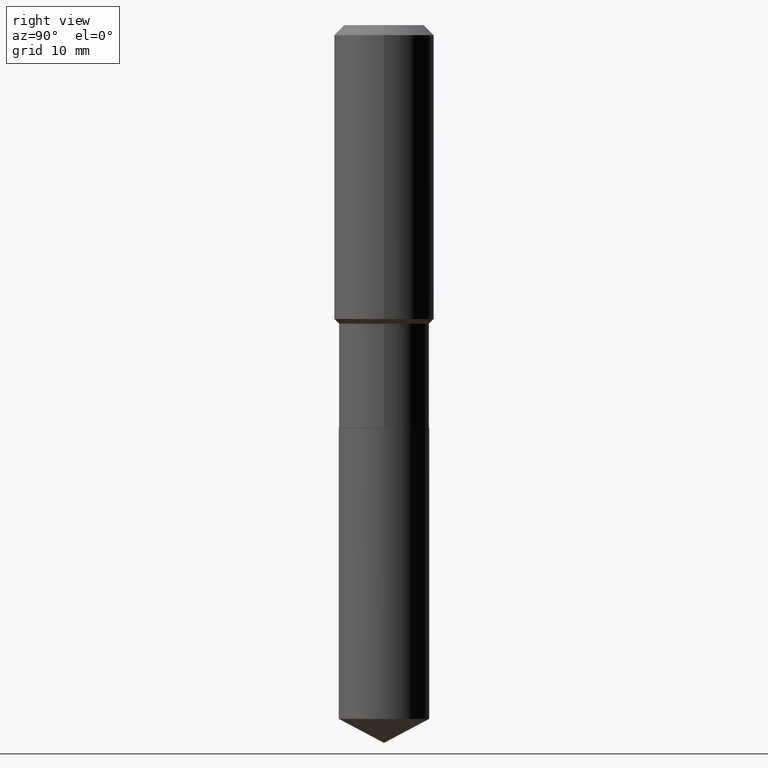
[diagram: clean part render]
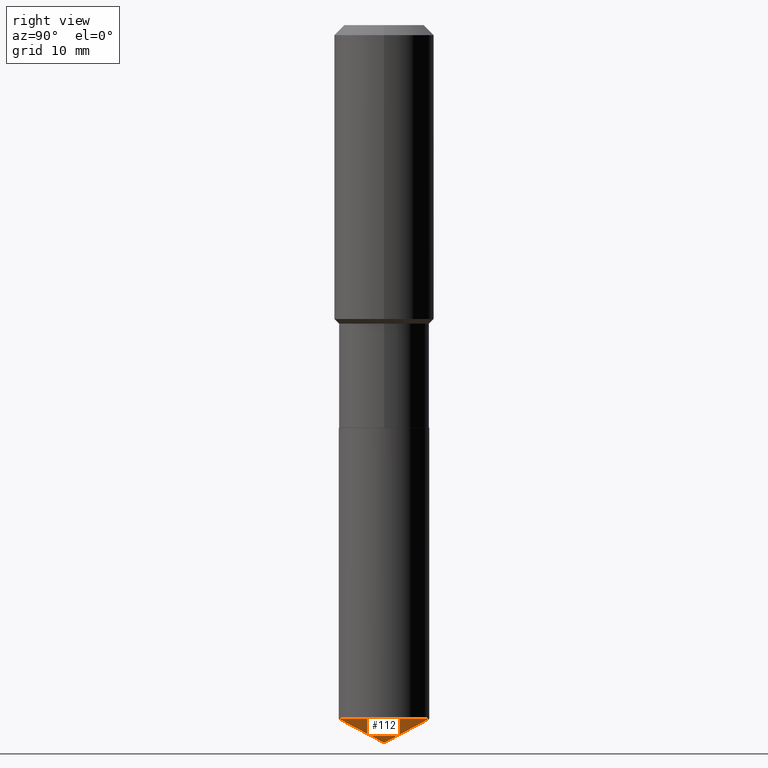
[diagram: same view with one face highlighted and labeled with its STEP entity id]
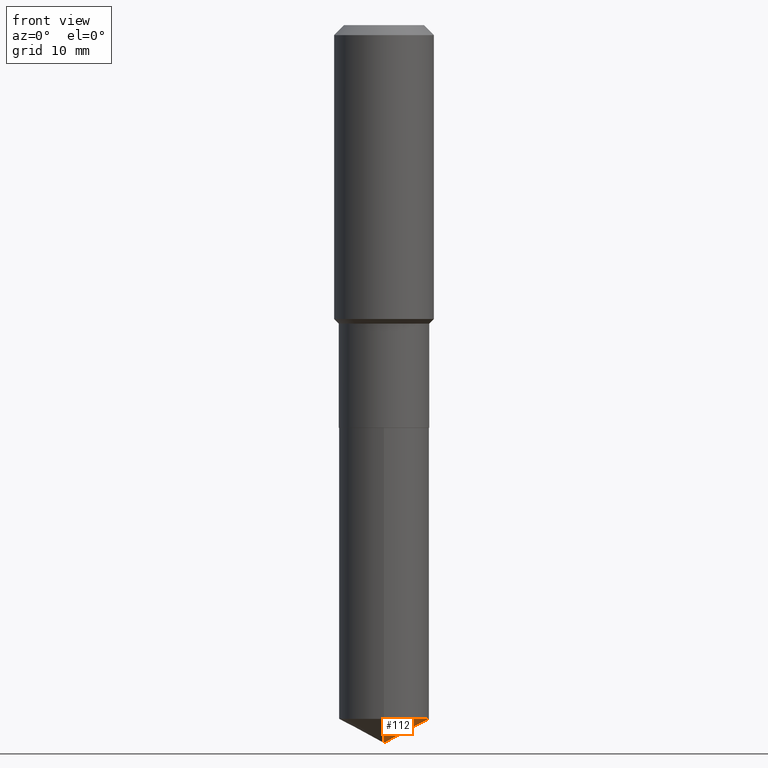
[diagram: same view with one face highlighted and labeled with its STEP entity id]
A machine part, right view. The second image highlights one B-rep face of the part: STEP entity #112.
A second angle (front view) of the same face is appended — the face is thin or edge-on in the first view.
In plain terms, the highlighted conical surface has half-angle 62 deg.
Its self-contained STEP definition (entity closure, byte-faithful):
#24 = ORIENTED_EDGE ( 'NONE', *, *, #172, .F. ) ;
#29 = CARTESIAN_POINT ( 'NONE',  ( 1.070128100905527205E-28, -1.527761786151748946E-14, -4.375823542732231175 ) ) ;
#45 = VERTEX_POINT ( 'NONE', #100 ) ;
#51 = CIRCLE ( 'NONE', #323, 0.2854499999999999815 ) ;
#66 = VERTEX_POINT ( 'NONE', #148 ) ;
#70 = CARTESIAN_POINT ( 'NONE',  ( 1.107295363746742606E-28, -1.580682683604083442E-14, -4.527599999999999625 ) ) ;
#74 = EDGE_CURVE ( 'NONE', #66, #45, #412, .T. ) ;
#100 = CARTESIAN_POINT ( 'NONE',  ( 2.028244239227312346E-15, 0.2854499999999847160, -4.375823542732232951 ) ) ;
#112 = ADVANCED_FACE ( 'NONE', ( #370 ), #304, .T. ) ;
#135 = DIRECTION ( 'NONE',  ( 6.273719981627766865E-15, 0.8829475928589298750, 0.4694715627858851992 ) ) ;
#148 = CARTESIAN_POINT ( 'NONE',  ( 1.107294536705841246E-28, -1.580682683604083442E-14, -4.527599999999999625 ) ) ;
#172 = EDGE_CURVE ( 'NONE', #66, #411, #184, .T. ) ;
#184 = LINE ( 'NONE', #454, #488 ) ;
#190 = EDGE_CURVE ( 'NONE', #411, #45, #51, .T. ) ;
#211 = CARTESIAN_POINT ( 'NONE',  ( -8.521313690931651071E-28, 1.216419229524110261E-13, 34.84247874015748181 ) ) ;
#231 = ORIENTED_EDGE ( 'NONE', *, *, #190, .F. ) ;
#250 = CARTESIAN_POINT ( 'NONE',  ( -1.993286696345437276E-15, -0.2854500000000152471, -4.375823542732230287 ) ) ;
#257 = DIRECTION ( 'NONE',  ( -6.982962677686265922E-15, -1.000000000000000000, 3.541896320645555347E-15 ) ) ;
#263 = VECTOR ( 'NONE', #135, 39.37007874015748143 ) ;
#266 = DIRECTION ( 'NONE',  ( -6.165590087286836818E-15, -0.8829475928589266553, 0.4694715627858914164 ) ) ;
#304 = CONICAL_SURFACE ( 'NONE', #373, 74.04434902938365326, 1.082104136236487157 ) ;
#316 = EDGE_LOOP ( 'NONE', ( #24, #431, #231 ) ) ;
#323 = AXIS2_PLACEMENT_3D ( 'NONE', #29, #337, #489 ) ;
#337 = DIRECTION ( 'NONE',  ( -2.445654511674709390E-29, 3.491215398012376990E-15, 1.000000000000000000 ) ) ;
#370 = FACE_OUTER_BOUND ( 'NONE', #316, .T. ) ;
#373 = AXIS2_PLACEMENT_3D ( 'NONE', #211, #479, #257 ) ;
#411 = VERTEX_POINT ( 'NONE', #250 ) ;
#412 = LINE ( 'NONE', #70, #263 ) ;
#431 = ORIENTED_EDGE ( 'NONE', *, *, #74, .T. ) ;
#454 = CARTESIAN_POINT ( 'NONE',  ( 1.107200220601796947E-28, -1.580817749633214477E-14, -4.527599999999999625 ) ) ;
#479 = DIRECTION ( 'NONE',  ( -2.445654511674709390E-29, 3.491215398012376990E-15, 1.000000000000000000 ) ) ;
#488 = VECTOR ( 'NONE', #266, 39.37007874015748854 ) ;
#489 = DIRECTION ( 'NONE',  ( -6.982962677686265133E-15, -1.000000000000000000, 3.828128209723963046E-15 ) ) ;